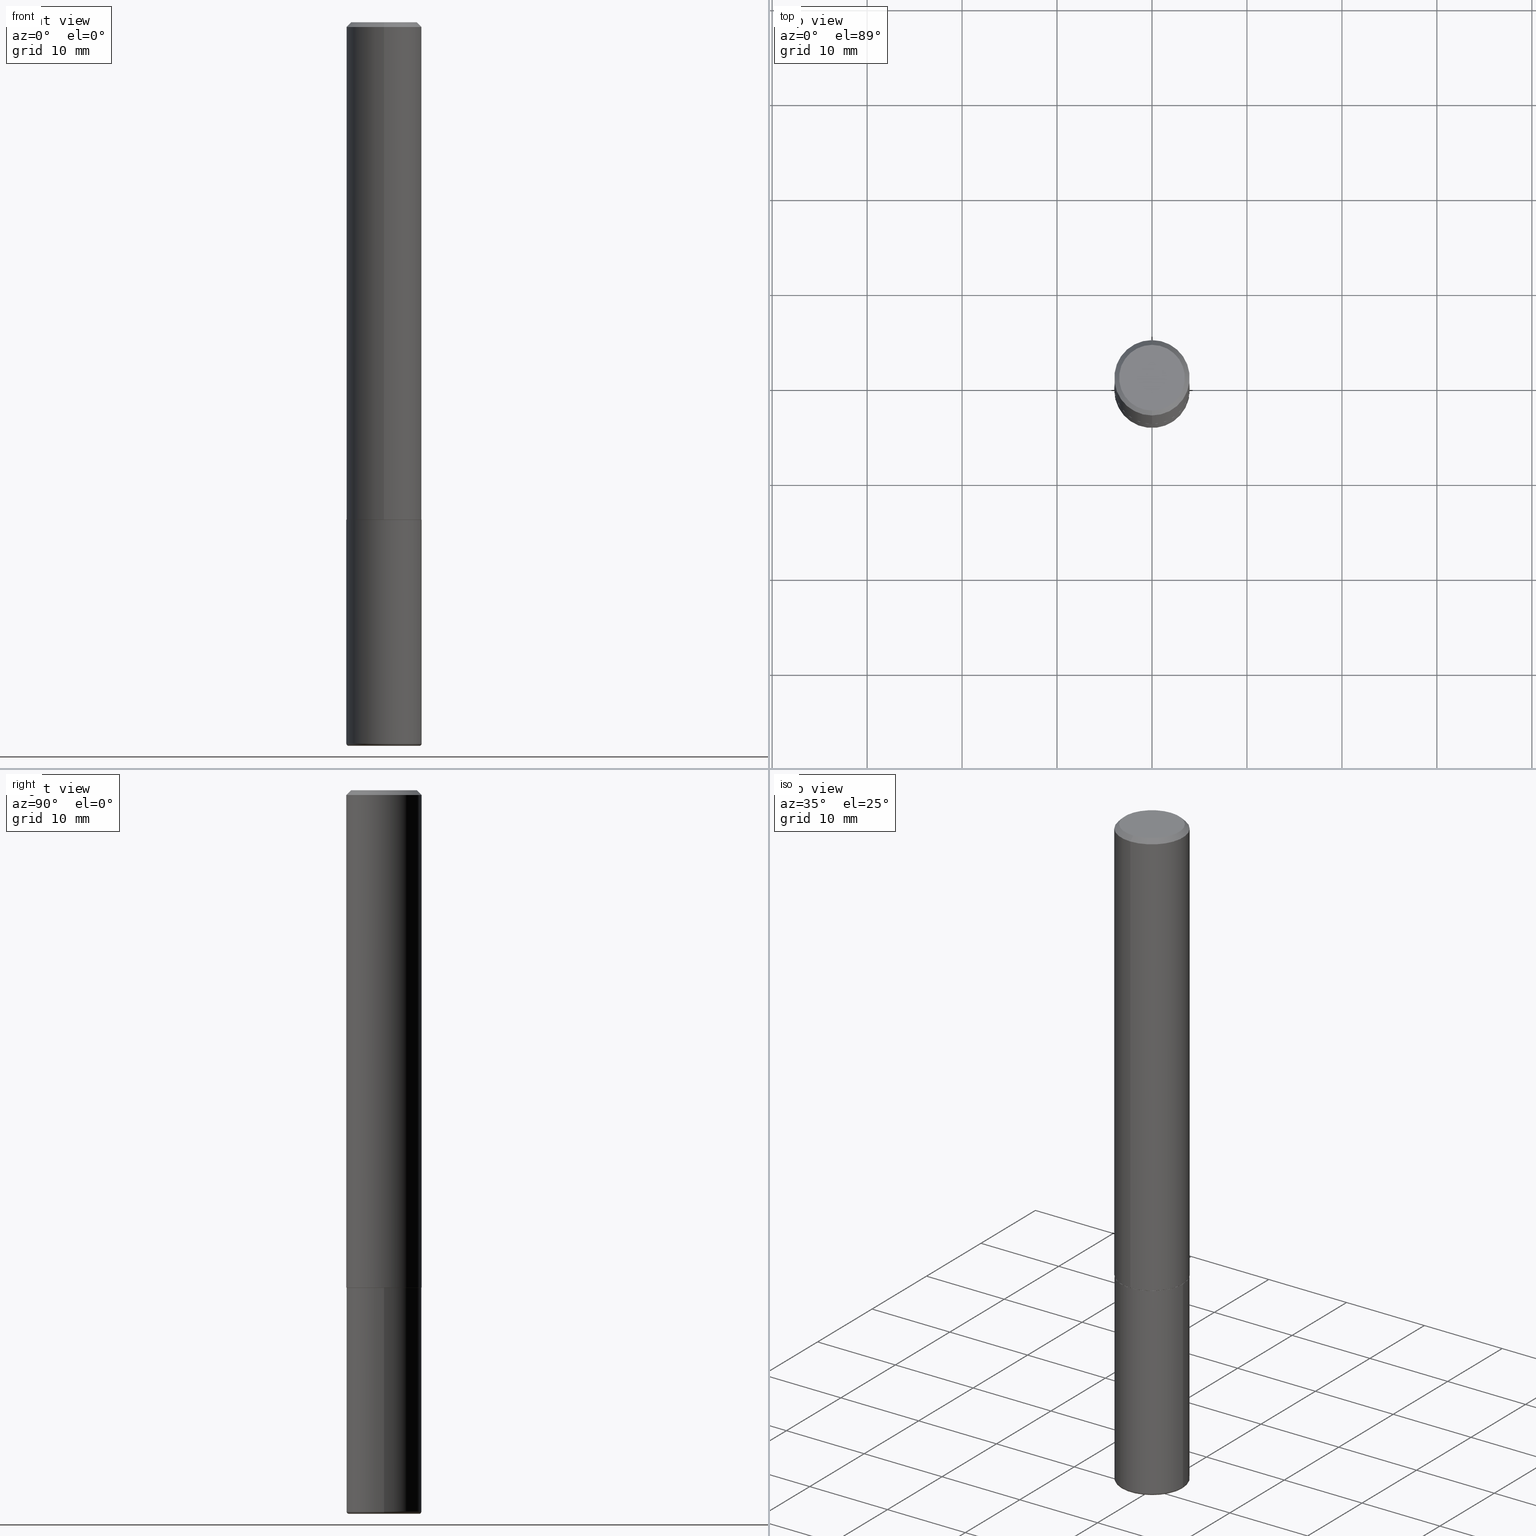
[diagram: canonical four-view strip — front | top / right | iso, engineering-drawing reading convention]
A machine part, canonical four-view strip (front | top / right | iso — engineering-drawing reading convention). The complete STEP part file that produces these views, byte-faithful:
ISO-10303-21;
HEADER;
FILE_DESCRIPTION (( 'STEP AP203' ),
    '1' );
FILE_NAME ('37450.STEP',
    '2024-03-02T01:32:37',
    ( '' ),
    ( '' ),
    'SwSTEP 2.0',
    'SolidWorks 2023',
    '' );
FILE_SCHEMA (( 'CONFIG_CONTROL_DESIGN' ));
ENDSEC;

DATA;
#1 = CYLINDRICAL_SURFACE ( 'NONE', #372, 0.1562500000000001388 ) ;
#2 = ORIENTED_EDGE ( 'NONE', *, *, #417, .F. ) ;
#3 = EDGE_LOOP ( 'NONE', ( #252, #223, #54, #193 ) ) ;
#4 = CYLINDRICAL_SURFACE ( 'NONE', #196, 0.1562500000000001388 ) ;
#5 = AXIS2_PLACEMENT_3D ( 'NONE', #311, #25, #50 ) ;
#6 = CC_DESIGN_APPROVAL ( #279, ( #358 ) ) ;
#7 = EDGE_CURVE ( 'NONE', #198, #344, #370, .T. ) ;
#8 = ORIENTED_EDGE ( 'NONE', *, *, #43, .T. ) ;
#9 = ORIENTED_EDGE ( 'NONE', *, *, #187, .F. ) ;
#10 = VERTEX_POINT ( 'NONE', #129 ) ;
#11 = PRODUCT_DEFINITION_FORMATION_WITH_SPECIFIED_SOURCE ( 'ANY', '', #386, .NOT_KNOWN. ) ;
#12 = COORDINATED_UNIVERSAL_TIME_OFFSET ( 5, 0, .BEHIND. ) ;
#13 = COORDINATED_UNIVERSAL_TIME_OFFSET ( 5, 0, .BEHIND. ) ;
#14 = EDGE_CURVE ( 'NONE', #87, #10, #59, .T. ) ;
#15 = DIRECTION ( 'NONE',  ( -1.000000000000000000, 6.982962677686265922E-15, -4.876176775795935793E-29 ) ) ;
#16 = PLANE ( 'NONE',  #151 ) ;
#17 = CYLINDRICAL_SURFACE ( 'NONE', #157, 0.1562500000000000000 ) ;
#18 = APPROVAL_DATE_TIME ( #105, #279 ) ;
#19 = DIRECTION ( 'NONE',  ( -4.937700262164378437E-15, -0.7071067811865208164, 0.7071067811865739960 ) ) ;
#20 = DIRECTION ( 'NONE',  ( 2.445176063107630933E-29, -3.491900563592034843E-15, -1.000000000000000000 ) ) ;
#21 = DIRECTION ( 'NONE',  ( -2.445176063107630933E-29, 3.491900563592034843E-15, 1.000000000000000000 ) ) ;
#22 = ADVANCED_FACE ( 'NONE', ( #406 ), #65, .T. ) ;
#23 = PLANE ( 'NONE',  #69 ) ;
#24 = ORIENTED_EDGE ( 'NONE', *, *, #303, .F. ) ;
#25 = DIRECTION ( 'NONE',  ( -2.445468806185136597E-29, 3.491481338843145583E-15, 1.000000000000000000 ) ) ;
#26 = LENGTH_MEASURE_WITH_UNIT ( LENGTH_MEASURE( 0.02539999999999999897 ), #353 );
#27 = CARTESIAN_POINT ( 'NONE',  ( 0.1562500000000000278, -1.153061712152948940E-14, -2.990000000000000657 ) ) ;
#28 = DIRECTION ( 'NONE',  ( 5.024295867787889629E-15, 0.7071067811865257013, 0.7071067811865691111 ) ) ;
#29 = EDGE_LOOP ( 'NONE', ( #60, #2 ) ) ;
#30 = DIRECTION ( 'NONE',  ( -6.982962677686265922E-15, -1.000000000000000000, 3.491900563592035238E-15 ) ) ;
#31 = CARTESIAN_POINT ( 'NONE',  ( 5.043175630159490166E-29, -7.202044912408575044E-15, -2.062500000000000444 ) ) ;
#32 = DIRECTION ( 'NONE',  ( -6.982962677686265133E-15, -1.000000000000000000, 3.496765431890256920E-15 ) ) ;
#33 = EDGE_CURVE ( 'NONE', #373, #58, #91, .T. ) ;
#34 = APPLICATION_PROTOCOL_DEFINITION ( 'international standard', 'config_control_design', 1994, #104 ) ;
#35 = AXIS2_PLACEMENT_3D ( 'NONE', #114, #247, #379 ) ;
#36 = CC_DESIGN_SECURITY_CLASSIFICATION ( #397, ( #11 ) ) ;
#37 = DIRECTION ( 'NONE',  ( 2.445176063107630933E-29, -3.491900563592034843E-15, -1.000000000000000000 ) ) ;
#38 = VERTEX_POINT ( 'NONE', #313 ) ;
#39 = EDGE_CURVE ( 'NONE', #38, #198, #278, .T. ) ;
#40 = ORIENTED_EDGE ( 'NONE', *, *, #345, .F. ) ;
#41 = AXIS2_PLACEMENT_3D ( 'NONE', #42, #51, #402 ) ;
#42 = CARTESIAN_POINT ( 'NONE',  ( 7.336406418555409790E-29, -1.047444401652943635E-14, -3.000000000000000444 ) ) ;
#43 = EDGE_CURVE ( 'NONE', #190, #344, #369, .T. ) ;
#44 = DIRECTION ( 'NONE',  ( -6.982962677686265922E-15, -1.000000000000000000, 3.491900563592034843E-15 ) ) ;
#45 = CIRCLE ( 'NONE', #86, 0.1562500000000000000 ) ;
#46 = DIRECTION ( 'NONE',  ( -2.445176063107630653E-29, 3.491900563592034843E-15, 1.000000000000000000 ) ) ;
#47 = SHAPE_DEFINITION_REPRESENTATION ( #416, #201 ) ;
#48 = DIRECTION ( 'NONE',  ( -2.445176063107630933E-29, 3.491900563592034843E-15, 1.000000000000000000 ) ) ;
#49 = FACE_OUTER_BOUND ( 'NONE', #362, .T. ) ;
#50 = DIRECTION ( 'NONE',  ( 1.000000000000000000, -6.982962677686262766E-15, 0.000000000000000000 ) ) ;
#51 = DIRECTION ( 'NONE',  ( -2.445468806185136597E-29, 3.491481338843145583E-15, 1.000000000000000000 ) ) ;
#52 = ADVANCED_FACE ( 'NONE', ( #376 ), #280, .F. ) ;
#53 = DIRECTION ( 'NONE',  ( -6.982962677686265922E-15, -1.000000000000000000, 3.519288880726909138E-15 ) ) ;
#54 = ORIENTED_EDGE ( 'NONE', *, *, #39, .T. ) ;
#55 = LINE ( 'NONE', #238, #189 ) ;
#56 = VECTOR ( 'NONE', #378, 39.37007874015748143 ) ;
#57 = ADVANCED_FACE ( 'NONE', ( #239 ), #17, .T. ) ;
#58 = VERTEX_POINT ( 'NONE', #192 ) ;
#59 = CIRCLE ( 'NONE', #273, 0.1562500000000000000 ) ;
#60 = ORIENTED_EDGE ( 'NONE', *, *, #78, .F. ) ;
#61 = APPROVAL_PERSON_ORGANIZATION ( #180, #326, #143 ) ;
#62 = DIRECTION ( 'NONE',  ( -6.982962677686265922E-15, -1.000000000000000000, 3.491900563592035238E-15 ) ) ;
#63 = FACE_OUTER_BOUND ( 'NONE', #3, .T. ) ;
#64 = ORIENTED_EDGE ( 'NONE', *, *, #71, .F. ) ;
#65 = CONICAL_SURFACE ( 'NONE', #85, 0.1562500000000000000, 0.7853981633974469467 ) ;
#66 = EDGE_LOOP ( 'NONE', ( #40, #161 ) ) ;
#67 = PERSON_AND_ORGANIZATION ( #178, #360 ) ;
#68 = VECTOR ( 'NONE', #395, 39.37007874015748143 ) ;
#69 = AXIS2_PLACEMENT_3D ( 'NONE', #153, #302, #243 ) ;
#70 = APPROVAL_STATUS ( 'not_yet_approved' ) ;
#71 = EDGE_CURVE ( 'NONE', #38, #177, #350, .T. ) ;
#72 = PERSON_AND_ORGANIZATION_ROLE ( 'design_supplier' ) ;
#73 = DIRECTION ( 'NONE',  ( -2.445176063107630933E-29, 3.491900563592034843E-15, 1.000000000000000000 ) ) ;
#74 = DIRECTION ( 'NONE',  ( -6.982962677686266711E-15, -1.000000000000000000, 3.491481338843145583E-15 ) ) ;
#75 = FACE_OUTER_BOUND ( 'NONE', #294, .T. ) ;
#76 = LOCAL_TIME ( 20, 32, 37.00000000000000000, #12 ) ;
#77 = DATE_AND_TIME ( #208, #234 ) ;
#78 = EDGE_CURVE ( 'NONE', #418, #186, #168, .T. ) ;
#79 = CARTESIAN_POINT ( 'NONE',  ( 4.890352126215269679E-31, -6.983801127184080238E-17, -0.02000000000000003511 ) ) ;
#80 = DIRECTION ( 'NONE',  ( -6.982962677686265922E-15, -1.000000000000000000, 3.491900563592034843E-15 ) ) ;
#81 = DATE_TIME_ROLE ( 'classification_date' ) ;
#82 = FACE_OUTER_BOUND ( 'NONE', #89, .T. ) ;
#83 = DIRECTION ( 'NONE',  ( 1.000000000000000000, -6.982962677686269077E-15, 0.000000000000000000 ) ) ;
#84 = EDGE_CURVE ( 'NONE', #177, #344, #285, .T. ) ;
#85 = AXIS2_PLACEMENT_3D ( 'NONE', #333, #20, #346 ) ;
#86 = AXIS2_PLACEMENT_3D ( 'NONE', #79, #21, #236 ) ;
#87 = VERTEX_POINT ( 'NONE', #155 ) ;
#88 = DIRECTION ( 'NONE',  ( 6.982962677686265133E-15, 1.000000000000000000, -3.496765431890256920E-15 ) ) ;
#89 = EDGE_LOOP ( 'NONE', ( #265, #212, #8, #115 ) ) ;
#90 = CARTESIAN_POINT ( 'NONE',  ( 0.000000000000000000, 0.000000000000000000, 0.000000000000000000 ) ) ;
#91 = CIRCLE ( 'NONE', #5, 0.1562500000000000000 ) ;
#92 = CONICAL_SURFACE ( 'NONE', #231, 0.1552499999999999991, 0.7853981633974141952 ) ;
#93 = ADVANCED_FACE ( 'NONE', ( #49 ), #307, .T. ) ;
#94 = ORIENTED_EDGE ( 'NONE', *, *, #417, .T. ) ;
#95 = DIRECTION ( 'NONE',  ( 1.000000000000000000, -6.982962677686269077E-15, 0.000000000000000000 ) ) ;
#96 = ORIENTED_EDGE ( 'NONE', *, *, #102, .F. ) ;
#97 = DIRECTION ( 'NONE',  ( -6.982962677686265922E-15, -1.000000000000000000, 3.519288880726909138E-15 ) ) ;
#98 = FACE_OUTER_BOUND ( 'NONE', #257, .T. ) ;
#99 = ORIENTED_EDGE ( 'NONE', *, *, #364, .F. ) ;
#100 = ADVANCED_FACE ( 'NONE', ( #270 ), #405, .F. ) ;
#101 = APPROVAL_PERSON_ORGANIZATION ( #67, #279, #112 ) ;
#102 = EDGE_CURVE ( 'NONE', #58, #373, #184, .T. ) ;
#103 = AXIS2_PLACEMENT_3D ( 'NONE', #412, #148, #116 ) ;
#104 = APPLICATION_CONTEXT ( 'configuration controlled 3d designs of mechanical parts and assemblies' ) ;
#105 = DATE_AND_TIME ( #137, #255 ) ;
#106 = CARTESIAN_POINT ( 'NONE',  ( 0.1462500000000000189, -1.149570230814105460E-14, -3.000000000000000444 ) ) ;
#107 = DIRECTION ( 'NONE',  ( -2.445468806185136877E-29, 3.491481338843145188E-15, 1.000000000000000000 ) ) ;
#108 = ADVANCED_FACE ( 'NONE', ( #82 ), #138, .T. ) ;
#109 = ORIENTED_EDGE ( 'NONE', *, *, #84, .T. ) ;
#110 = AXIS2_PLACEMENT_3D ( 'NONE', #342, #46, #80 ) ;
#111 = CARTESIAN_POINT ( 'NONE',  ( 1.091087918388479568E-15, 0.1562499999999999445, -0.02000000000000057981 ) ) ;
#112 = APPROVAL_ROLE ( '' ) ;
#113 = CARTESIAN_POINT ( 'NONE',  ( -1.071952812151801215E-15, -0.1562500000000000833, -0.01999999999999948694 ) ) ;
#114 = CARTESIAN_POINT ( 'NONE',  ( 7.311951730493559366E-29, -1.043952920314100786E-14, -2.990000000000000657 ) ) ;
#115 = ORIENTED_EDGE ( 'NONE', *, *, #336, .T. ) ;
#116 = DIRECTION ( 'NONE',  ( 1.000000000000000000, -6.982962677686270655E-15, 0.000000000000000000 ) ) ;
#117 =( NAMED_UNIT ( * ) SI_UNIT ( $, .STERADIAN. ) SOLID_ANGLE_UNIT ( ) );
#118 = ADVANCED_FACE ( 'NONE', ( #125 ), #1, .T. ) ;
#119 = VECTOR ( 'NONE', #383, 39.37007874015748143 ) ;
#120 = CIRCLE ( 'NONE', #176, 0.1362500000000001210 ) ;
#121 = ORIENTED_EDGE ( 'NONE', *, *, #303, .T. ) ;
#122 = EDGE_LOOP ( 'NONE', ( #99, #314, #194, #287 ) ) ;
#123 = EDGE_CURVE ( 'NONE', #177, #38, #330, .T. ) ;
#124 = ORIENTED_EDGE ( 'NONE', *, *, #123, .F. ) ;
#125 = FACE_OUTER_BOUND ( 'NONE', #160, .T. ) ;
#126 = ORIENTED_EDGE ( 'NONE', *, *, #71, .T. ) ;
#127 = AXIS2_PLACEMENT_3D ( 'NONE', #207, #382, #219 ) ;
#128 = DIRECTION ( 'NONE',  ( 0.000000000000000000, 0.000000000000000000, 1.000000000000000000 ) ) ;
#129 = CARTESIAN_POINT ( 'NONE',  ( 0.1562500000000000000, -8.292268179752468540E-15, -2.062500000000000000 ) ) ;
#130 = TOROIDAL_SURFACE ( 'NONE', #325, 0.1462500000000000189, 0.01000000000000008174 ) ;
#131 = DIRECTION ( 'NONE',  ( -2.445176063107630933E-29, 3.491900563592034843E-15, 1.000000000000000000 ) ) ;
#132 = CC_DESIGN_DATE_AND_TIME_ASSIGNMENT ( #77, #343, ( #358 ) ) ;
#133 = ORIENTED_EDGE ( 'NONE', *, *, #345, .T. ) ;
#134 = APPROVAL ( #70, 'UNSPECIFIED' ) ;
#135 = CARTESIAN_POINT ( 'NONE',  ( 0.000000000000000000, 0.000000000000000000, 0.000000000000000000 ) ) ;
#136 = APPROVAL_DATE_TIME ( #211, #134 ) ;
#137 = CALENDAR_DATE ( 2024, 1, 3 ) ;
#138 = CONICAL_SURFACE ( 'NONE', #384, 0.1562500000000000000, 0.7853981633974469467 ) ;
#139 = FACE_OUTER_BOUND ( 'NONE', #241, .T. ) ;
#140 = VECTOR ( 'NONE', #28, 39.37007874015748854 ) ;
#141 = DIRECTION ( 'NONE',  ( 2.438088387897960049E-29, -3.491481338843145188E-15, -1.000000000000000000 ) ) ;
#142 = CARTESIAN_POINT ( 'NONE',  ( 0.000000000000000000, 0.000000000000000000, 0.000000000000000000 ) ) ;
#143 = APPROVAL_ROLE ( '' ) ;
#144 = CARTESIAN_POINT ( 'NONE',  ( 1.106670310946407312E-15, 0.1552499999999928104, -2.062500000000000888 ) ) ;
#145 = PRODUCT_RELATED_PRODUCT_CATEGORY ( 'detail', '', ( #386 ) ) ;
#146 = DATE_AND_TIME ( #272, #337 ) ;
#147 = ORIENTED_EDGE ( 'NONE', *, *, #39, .F. ) ;
#148 = DIRECTION ( 'NONE',  ( -2.445468806185136597E-29, 3.491481338843145583E-15, 1.000000000000000000 ) ) ;
#149 = VECTOR ( 'NONE', #339, 39.37007874015748143 ) ;
#150 = DIRECTION ( 'NONE',  ( 2.445176063107630653E-29, -3.491900563592034843E-15, -1.000000000000000000 ) ) ;
#151 = AXIS2_PLACEMENT_3D ( 'NONE', #179, #141, #15 ) ;
#152 = EDGE_LOOP ( 'NONE', ( #9, #167, #292, #328 ) ) ;
#153 = CARTESIAN_POINT ( 'NONE',  ( 5.043779412756844791E-29, -7.201180261363988578E-15, -2.062500000000000000 ) ) ;
#154 = ADVANCED_FACE ( 'NONE', ( #98 ), #293, .T. ) ;
#155 = CARTESIAN_POINT ( 'NONE',  ( -0.1562500000000000000, -7.710131707627340889E-15, -2.062500000000000000 ) ) ;
#156 = MANIFOLD_SOLID_BREP ( 'Body-Move/Copy2[1]', #225 ) ;
#157 = AXIS2_PLACEMENT_3D ( 'NONE', #142, #267, #355 ) ;
#158 = LOCAL_TIME ( 20, 32, 37.00000000000000000, #203 ) ;
#159 = AXIS2_PLACEMENT_3D ( 'NONE', #305, #380, #83 ) ;
#160 = EDGE_LOOP ( 'NONE', ( #126, #109, #348, #147 ) ) ;
#161 = ORIENTED_EDGE ( 'NONE', *, *, #170, .F. ) ;
#162 = CARTESIAN_POINT ( 'NONE',  ( -0.1462500000000000189, -9.382290721998072185E-15, -3.000000000000000444 ) ) ;
#163 = DIRECTION ( 'NONE',  ( -6.982962677686265922E-15, -1.000000000000000000, 3.496765431890250609E-15 ) ) ;
#164 = ORIENTED_EDGE ( 'NONE', *, *, #170, .T. ) ;
#165 = CARTESIAN_POINT ( 'NONE',  ( 5.040730454096381281E-29, -7.198553011844980434E-15, -2.061500000000000110 ) ) ;
#166 = ORIENTED_EDGE ( 'NONE', *, *, #187, .T. ) ;
#167 = ORIENTED_EDGE ( 'NONE', *, *, #102, .T. ) ;
#168 = CIRCLE ( 'NONE', #407, 0.1552499999999999991 ) ;
#169 = VECTOR ( 'NONE', #107, 39.37007874015748143 ) ;
#170 = EDGE_CURVE ( 'NONE', #387, #312, #351, .T. ) ;
#171 = PERSON_AND_ORGANIZATION ( #178, #360 ) ;
#172 = CARTESIAN_POINT ( 'NONE',  ( 1.021258291611617059E-15, 0.1362500000000001210, -5.653530947094876156E-16 ) ) ;
#173 = SECURITY_CLASSIFICATION_LEVEL ( 'unclassified' ) ;
#174 = CC_DESIGN_PERSON_AND_ORGANIZATION_ASSIGNMENT ( #235, #72, ( #11 ) ) ;
#175 = DIRECTION ( 'NONE',  ( 7.105427357601001859E-15, 1.000000000000000000, -3.491481338843145583E-15 ) ) ;
#176 = AXIS2_PLACEMENT_3D ( 'NONE', #213, #367, #44 ) ;
#177 = VERTEX_POINT ( 'NONE', #246 ) ;
#178 = PERSON ( 'UNSPECIFIED', 'UNSPECIFIED', 'UNSPECIFIED', ('UNSPECIFIED'), ('UNSPECIFIED'), ('UNSPECIFIED') ) ;
#179 = CARTESIAN_POINT ( 'NONE',  ( 7.336406418555409790E-29, -1.047444401652943635E-14, -3.000000000000000444 ) ) ;
#180 = PERSON_AND_ORGANIZATION ( #178, #360 ) ;
#181 = CARTESIAN_POINT ( 'NONE',  ( -1.071952812151801215E-15, -0.1562500000000000833, -0.01999999999999948694 ) ) ;
#182 = DESIGN_CONTEXT ( 'detailed design', #104, 'design' ) ;
#183 = LINE ( 'NONE', #310, #288 ) ;
#184 = CIRCLE ( 'NONE', #35, 0.1562500000000000000 ) ;
#185 = APPLICATION_PROTOCOL_DEFINITION ( 'international standard', 'config_control_design', 1994, #309 ) ;
#186 = VERTEX_POINT ( 'NONE', #144 ) ;
#187 = EDGE_CURVE ( 'NONE', #58, #87, #55, .T. ) ;
#188 = AXIS2_PLACEMENT_3D ( 'NONE', #254, #322, #32 ) ;
#189 = VECTOR ( 'NONE', #215, 39.37007874015748143 ) ;
#190 = VERTEX_POINT ( 'NONE', #172 ) ;
#191 = CARTESIAN_POINT ( 'NONE',  ( 5.040730454096381281E-29, -7.198553011844980434E-15, -2.061500000000000110 ) ) ;
#192 = CARTESIAN_POINT ( 'NONE',  ( -0.1562500000000000278, -9.329306178515851319E-15, -2.990000000000000657 ) ) ;
#193 = ORIENTED_EDGE ( 'NONE', *, *, #336, .F. ) ;
#194 = ORIENTED_EDGE ( 'NONE', *, *, #7, .T. ) ;
#195 = EDGE_CURVE ( 'NONE', #373, #10, #249, .T. ) ;
#196 = AXIS2_PLACEMENT_3D ( 'NONE', #90, #131, #30 ) ;
#197 = ORIENTED_EDGE ( 'NONE', *, *, #245, .F. ) ;
#198 = VERTEX_POINT ( 'NONE', #113 ) ;
#199 = EDGE_CURVE ( 'NONE', #190, #359, #120, .T. ) ;
#200 = CIRCLE ( 'NONE', #220, 0.01000000000000006439 ) ;
#201 = ADVANCED_BREP_SHAPE_REPRESENTATION ( '37450', ( #156, #291, #295 ), #282 ) ;
#202 = CC_DESIGN_PERSON_AND_ORGANIZATION_ASSIGNMENT ( #401, #261, ( #358 ) ) ;
#203 = COORDINATED_UNIVERSAL_TIME_OFFSET ( 5, 0, .BEHIND. ) ;
#204 = DIRECTION ( 'NONE',  ( -6.982962677686265922E-15, -1.000000000000000000, 3.519288880726909138E-15 ) ) ;
#205 = ORIENTED_EDGE ( 'NONE', *, *, #245, .T. ) ;
#206 = LINE ( 'NONE', #266, #140 ) ;
#207 = CARTESIAN_POINT ( 'NONE',  ( 7.311951730493558245E-29, -1.043952920314100628E-14, -2.990000000000000213 ) ) ;
#208 = CALENDAR_DATE ( 2024, 1, 3 ) ;
#209 = AXIS2_PLACEMENT_3D ( 'NONE', #135, #233, #363 ) ;
#210 = CARTESIAN_POINT ( 'NONE',  ( 5.043175630159490166E-29, -7.202044912408575044E-15, -2.062500000000000444 ) ) ;
#211 = DATE_AND_TIME ( #371, #76 ) ;
#212 = ORIENTED_EDGE ( 'NONE', *, *, #199, .F. ) ;
#213 = CARTESIAN_POINT ( 'NONE',  ( 2.190428889620163364E-45, -3.128101894001013777E-31, -8.958164292007245599E-17 ) ) ;
#214 = PERSON_AND_ORGANIZATION ( #178, #360 ) ;
#215 = DIRECTION ( 'NONE',  ( -2.445468806185136877E-29, 3.491481338843145188E-15, 1.000000000000000000 ) ) ;
#216 = CC_DESIGN_PERSON_AND_ORGANIZATION_ASSIGNMENT ( #361, #396, ( #386 ) ) ;
#217 = DIRECTION ( 'NONE',  ( -1.000000000000000000, 7.105427357601074434E-15, 0.000000000000000000 ) ) ;
#218 = AXIS2_PLACEMENT_3D ( 'NONE', #165, #222, #321 ) ;
#219 = DIRECTION ( 'NONE',  ( 1.000000000000000000, -6.982962677686272233E-15, 4.883557194083114583E-29 ) ) ;
#220 = AXIS2_PLACEMENT_3D ( 'NONE', #341, #175, #217 ) ;
#221 = ORIENTED_EDGE ( 'NONE', *, *, #228, .F. ) ;
#222 = DIRECTION ( 'NONE',  ( -2.445176063107630933E-29, 3.491900563592034843E-15, 1.000000000000000000 ) ) ;
#223 = ORIENTED_EDGE ( 'NONE', *, *, #123, .T. ) ;
#224 = CARTESIAN_POINT ( 'NONE',  ( 0.000000000000000000, 0.000000000000000000, 0.000000000000000000 ) ) ;
#225 = CLOSED_SHELL ( 'NONE', ( #154, #93, #290, #57, #271, #262 ) ) ;
#226 = CIRCLE ( 'NONE', #415, 0.01000000000000006439 ) ;
#227 = EDGE_LOOP ( 'NONE', ( #276, #318 ) ) ;
#228 = EDGE_CURVE ( 'NONE', #10, #87, #393, .T. ) ;
#229 = UNCERTAINTY_MEASURE_WITH_UNIT (LENGTH_MEASURE( 1.000000000000000082E-05 ), #411, 'distance_accuracy_value', 'NONE');
#230 = ORIENTED_EDGE ( 'NONE', *, *, #195, .F. ) ;
#231 = AXIS2_PLACEMENT_3D ( 'NONE', #394, #73, #53 ) ;
#232 = EDGE_CURVE ( 'NONE', #387, #58, #200, .T. ) ;
#233 = DIRECTION ( 'NONE',  ( -2.445468806185136597E-29, 3.491481338843145583E-15, 1.000000000000000000 ) ) ;
#234 = LOCAL_TIME ( 20, 32, 37.00000000000000000, #301 ) ;
#235 = PERSON_AND_ORGANIZATION ( #178, #360 ) ;
#236 = DIRECTION ( 'NONE',  ( -6.982962677686265133E-15, -1.000000000000000000, 3.496765431890256920E-15 ) ) ;
#237 = ORIENTED_EDGE ( 'NONE', *, *, #78, .T. ) ;
#238 = CARTESIAN_POINT ( 'NONE',  ( -0.1562500000000000000, 1.110223024625156540E-15, -7.685836078523291160E-30 ) ) ;
#239 = FACE_OUTER_BOUND ( 'NONE', #152, .T. ) ;
#240 = DATE_AND_TIME ( #244, #158 ) ;
#241 = EDGE_LOOP ( 'NONE', ( #340, #164, #121, #96 ) ) ;
#242 = CONICAL_SURFACE ( 'NONE', #409, 0.1552499999999999991, 0.7853981633974141952 ) ;
#243 = DIRECTION ( 'NONE',  ( -1.000000000000000000, 6.982962677686265922E-15, -4.876176775795935793E-29 ) ) ;
#244 = CALENDAR_DATE ( 2024, 1, 3 ) ;
#245 = EDGE_CURVE ( 'NONE', #418, #38, #183, .T. ) ;
#246 = CARTESIAN_POINT ( 'NONE',  ( 1.110223024625183362E-15, 0.1562499999999930611, -2.061500000000000554 ) ) ;
#247 = DIRECTION ( 'NONE',  ( -2.445468806185136597E-29, 3.491481338843145583E-15, 1.000000000000000000 ) ) ;
#248 =( NAMED_UNIT ( * ) PLANE_ANGLE_UNIT ( ) SI_UNIT ( $, .RADIAN. ) );
#249 = LINE ( 'NONE', #300, #169 ) ;
#250 = CC_DESIGN_PERSON_AND_ORGANIZATION_ASSIGNMENT ( #171, #268, ( #11 ) ) ;
#251 = CIRCLE ( 'NONE', #103, 0.1462500000000000189 ) ;
#252 = ORIENTED_EDGE ( 'NONE', *, *, #84, .F. ) ;
#253 = ORIENTED_EDGE ( 'NONE', *, *, #228, .T. ) ;
#254 = CARTESIAN_POINT ( 'NONE',  ( 4.890352126215269679E-31, -6.983801127184080238E-17, -0.02000000000000003511 ) ) ;
#255 = LOCAL_TIME ( 20, 32, 37.00000000000000000, #13 ) ;
#256 = CARTESIAN_POINT ( 'NONE',  ( 5.043779412756844791E-29, -7.201180261363988578E-15, -2.062500000000000000 ) ) ;
#257 = EDGE_LOOP ( 'NONE', ( #299, #166, #221, #230 ) ) ;
#258 = EDGE_CURVE ( 'NONE', #359, #198, #338, .T. ) ;
#259 = CARTESIAN_POINT ( 'NONE',  ( 1.110223024625157329E-15, 0.1562500000000001388, -5.456094630612559989E-16 ) ) ;
#260 = CC_DESIGN_APPROVAL ( #326, ( #11 ) ) ;
#261 = PERSON_AND_ORGANIZATION_ROLE ( 'creator' ) ;
#262 = ADVANCED_FACE ( 'NONE', ( #298 ), #16, .T. ) ;
#263 = DIRECTION ( 'NONE',  ( 1.000000000000000000, -6.982962677686272233E-15, 4.883557194083114583E-29 ) ) ;
#264 = PERSON_AND_ORGANIZATION_ROLE ( 'classification_officer' ) ;
#265 = ORIENTED_EDGE ( 'NONE', *, *, #258, .F. ) ;
#266 = CARTESIAN_POINT ( 'NONE',  ( 1.103117597267605822E-15, 0.1552499999999928104, -2.062500000000000888 ) ) ;
#267 = DIRECTION ( 'NONE',  ( -2.445468806185136597E-29, 3.491481338843145583E-15, 1.000000000000000000 ) ) ;
#268 = PERSON_AND_ORGANIZATION_ROLE ( 'creator' ) ;
#269 = CARTESIAN_POINT ( 'NONE',  ( 7.311951730493558245E-29, -1.043952920314100628E-14, -2.990000000000000213 ) ) ;
#270 = FACE_OUTER_BOUND ( 'NONE', #227, .T. ) ;
#271 = ADVANCED_FACE ( 'NONE', ( #139 ), #130, .T. ) ;
#272 = CALENDAR_DATE ( 2024, 1, 3 ) ;
#273 = AXIS2_PLACEMENT_3D ( 'NONE', #256, #391, #95 ) ;
#274 = CIRCLE ( 'NONE', #385, 0.1362500000000001210 ) ;
#275 = DIRECTION ( 'NONE',  ( 6.982962677686265922E-15, 1.000000000000000000, -3.491900563592034843E-15 ) ) ;
#276 = ORIENTED_EDGE ( 'NONE', *, *, #199, .T. ) ;
#277 = CARTESIAN_POINT ( 'NONE',  ( 1.091087918388479568E-15, 0.1562499999999999445, -0.02000000000000057981 ) ) ;
#278 = LINE ( 'NONE', #413, #149 ) ;
#279 = APPROVAL ( #327, 'UNSPECIFIED' ) ;
#280 = PLANE ( 'NONE',  #110 ) ;
#281 = CLOSED_SHELL ( 'NONE', ( #286, #118, #22, #108, #381, #400, #52, #100 ) ) ;
#282 =( GEOMETRIC_REPRESENTATION_CONTEXT ( 3 ) GLOBAL_UNCERTAINTY_ASSIGNED_CONTEXT ( ( #229 ) ) GLOBAL_UNIT_ASSIGNED_CONTEXT ( ( #411, #248, #117 ) ) REPRESENTATION_CONTEXT ( 'NONE', 'WORKASPACE' ) );
#283 = FACE_OUTER_BOUND ( 'NONE', #347, .T. ) ;
#284 = EDGE_LOOP ( 'NONE', ( #253, #357 ) ) ;
#285 = LINE ( 'NONE', #259, #68 ) ;
#286 = ADVANCED_FACE ( 'NONE', ( #75 ), #242, .T. ) ;
#287 = ORIENTED_EDGE ( 'NONE', *, *, #43, .F. ) ;
#288 = VECTOR ( 'NONE', #19, 39.37007874015748854 ) ;
#289 = CC_DESIGN_PERSON_AND_ORGANIZATION_ASSIGNMENT ( #408, #264, ( #397 ) ) ;
#290 = ADVANCED_FACE ( 'NONE', ( #404 ), #23, .F. ) ;
#291 = MANIFOLD_SOLID_BREP ( 'Body-Move/Copy2[2]', #281 ) ;
#292 = ORIENTED_EDGE ( 'NONE', *, *, #195, .T. ) ;
#293 = CYLINDRICAL_SURFACE ( 'NONE', #209, 0.1562500000000000000 ) ;
#294 = EDGE_LOOP ( 'NONE', ( #237, #414, #64, #197 ) ) ;
#295 = AXIS2_PLACEMENT_3D ( 'NONE', #329, #128, #324 ) ;
#296 = APPROVAL_ROLE ( '' ) ;
#297 = DIRECTION ( 'NONE',  ( -2.445176063107630933E-29, 3.491900563592034843E-15, 1.000000000000000000 ) ) ;
#298 = FACE_OUTER_BOUND ( 'NONE', #66, .T. ) ;
#299 = ORIENTED_EDGE ( 'NONE', *, *, #33, .T. ) ;
#300 = CARTESIAN_POINT ( 'NONE',  ( 0.1562500000000000000, -1.091087918388479174E-15, 7.619026212181150377E-30 ) ) ;
#301 = COORDINATED_UNIVERSAL_TIME_OFFSET ( 5, 0, .BEHIND. ) ;
#302 = DIRECTION ( 'NONE',  ( 2.438088387897960049E-29, -3.491481338843145188E-15, -1.000000000000000000 ) ) ;
#303 = EDGE_CURVE ( 'NONE', #312, #373, #226, .T. ) ;
#304 = ORIENTED_EDGE ( 'NONE', *, *, #33, .F. ) ;
#305 = CARTESIAN_POINT ( 'NONE',  ( 5.043779412756844791E-29, -7.201180261363988578E-15, -2.062500000000000000 ) ) ;
#306 = CARTESIAN_POINT ( 'NONE',  ( 5.043175630159490166E-29, -7.202044912408575044E-15, -2.062500000000000444 ) ) ;
#307 = TOROIDAL_SURFACE ( 'NONE', #127, 0.1462500000000000189, 0.01000000000000008174 ) ;
#308 = AXIS2_PLACEMENT_3D ( 'NONE', #191, #319, #163 ) ;
#309 = APPLICATION_CONTEXT ( 'configuration controlled 3d designs of mechanical parts and assemblies' ) ;
#310 = CARTESIAN_POINT ( 'NONE',  ( -1.084104955710742475E-15, -0.1552500000000072156, -2.062500000000000000 ) ) ;
#311 = CARTESIAN_POINT ( 'NONE',  ( 7.311951730493559366E-29, -1.043952920314100786E-14, -2.990000000000000657 ) ) ;
#312 = VERTEX_POINT ( 'NONE', #106 ) ;
#313 = CARTESIAN_POINT ( 'NONE',  ( -1.091087918388430659E-15, -0.1562500000000074940, -2.061499999999999666 ) ) ;
#314 = ORIENTED_EDGE ( 'NONE', *, *, #258, .T. ) ;
#315 = CARTESIAN_POINT ( 'NONE',  ( 2.190428889620163364E-45, -3.128101894001013777E-31, -8.958164292007245599E-17 ) ) ;
#316 = ORIENTED_EDGE ( 'NONE', *, *, #349, .F. ) ;
#317 = CC_DESIGN_APPROVAL ( #134, ( #397 ) ) ;
#318 = ORIENTED_EDGE ( 'NONE', *, *, #364, .T. ) ;
#319 = DIRECTION ( 'NONE',  ( -2.445176063107630933E-29, 3.491900563592034843E-15, 1.000000000000000000 ) ) ;
#320 = DIMENSIONAL_EXPONENTS ( 1.000000000000000000, 0.000000000000000000, 0.000000000000000000, 0.000000000000000000, 0.000000000000000000, 0.000000000000000000, 0.000000000000000000 ) ;
#321 = DIRECTION ( 'NONE',  ( -6.982962677686265922E-15, -1.000000000000000000, 3.496765431890250609E-15 ) ) ;
#322 = DIRECTION ( 'NONE',  ( -2.445176063107630933E-29, 3.491900563592034843E-15, 1.000000000000000000 ) ) ;
#323 = CARTESIAN_POINT ( 'NONE',  ( 4.890352126215269679E-31, -6.983801127184080238E-17, -0.02000000000000003511 ) ) ;
#324 = DIRECTION ( 'NONE',  ( 1.000000000000000000, 0.000000000000000000, 0.000000000000000000 ) ) ;
#325 = AXIS2_PLACEMENT_3D ( 'NONE', #269, #368, #263 ) ;
#326 = APPROVAL ( #377, 'UNSPECIFIED' ) ;
#327 = APPROVAL_STATUS ( 'not_yet_approved' ) ;
#328 = ORIENTED_EDGE ( 'NONE', *, *, #14, .F. ) ;
#329 = CARTESIAN_POINT ( 'NONE',  ( 0.000000000000000000, 0.000000000000000000, 0.000000000000000000 ) ) ;
#330 = CIRCLE ( 'NONE', #308, 0.1562500000000002776 ) ;
#331 = CC_DESIGN_DATE_AND_TIME_ASSIGNMENT ( #240, #81, ( #397 ) ) ;
#332 = CARTESIAN_POINT ( 'NONE',  ( -1.084104955710742475E-15, -0.1552500000000072156, -2.062500000000000000 ) ) ;
#333 = CARTESIAN_POINT ( 'NONE',  ( 4.890352126215269679E-31, -6.983801127184080238E-17, -0.02000000000000003511 ) ) ;
#334 = COORDINATED_UNIVERSAL_TIME_OFFSET ( 5, 0, .BEHIND. ) ;
#335 = APPROVAL_PERSON_ORGANIZATION ( #214, #134, #296 ) ;
#336 = EDGE_CURVE ( 'NONE', #344, #198, #45, .T. ) ;
#337 = LOCAL_TIME ( 20, 32, 37.00000000000000000, #334 ) ;
#338 = LINE ( 'NONE', #181, #56 ) ;
#339 = DIRECTION ( 'NONE',  ( -2.445176063107631214E-29, 3.491900563592034843E-15, 1.000000000000000000 ) ) ;
#340 = ORIENTED_EDGE ( 'NONE', *, *, #232, .F. ) ;
#341 = CARTESIAN_POINT ( 'NONE',  ( -0.1462500000000000189, -9.400360452091859823E-15, -2.990000000000000213 ) ) ;
#342 = CARTESIAN_POINT ( 'NONE',  ( 5.043175630159489045E-29, -7.202044912408573467E-15, -2.062500000000000000 ) ) ;
#343 = DATE_TIME_ROLE ( 'creation_date' ) ;
#344 = VERTEX_POINT ( 'NONE', #277 ) ;
#345 = EDGE_CURVE ( 'NONE', #312, #387, #251, .T. ) ;
#346 = DIRECTION ( 'NONE',  ( 6.982962677686265133E-15, 1.000000000000000000, -3.496765431890256920E-15 ) ) ;
#347 = EDGE_LOOP ( 'NONE', ( #316, #94, #205, #124 ) ) ;
#348 = ORIENTED_EDGE ( 'NONE', *, *, #7, .F. ) ;
#349 = EDGE_CURVE ( 'NONE', #186, #177, #206, .T. ) ;
#350 = CIRCLE ( 'NONE', #218, 0.1562500000000002776 ) ;
#351 = CIRCLE ( 'NONE', #41, 0.1462500000000000189 ) ;
#352 = DIRECTION ( 'NONE',  ( -2.445176063107630933E-29, 3.491900563592034843E-15, 1.000000000000000000 ) ) ;
#353 =( LENGTH_UNIT ( ) NAMED_UNIT ( * ) SI_UNIT ( $, .METRE. ) );
#354 = DIRECTION ( 'NONE',  ( -6.982962677686265922E-15, -1.000000000000000000, 3.491900563592034843E-15 ) ) ;
#355 = DIRECTION ( 'NONE',  ( 1.000000000000000000, -6.982962677686266711E-15, 4.876176775795936353E-29 ) ) ;
#356 = MECHANICAL_CONTEXT ( 'NONE', #309, 'mechanical' ) ;
#357 = ORIENTED_EDGE ( 'NONE', *, *, #14, .T. ) ;
#358 = PRODUCT_DEFINITION ( 'UNKNOWN', '', #11, #182 ) ;
#359 = VERTEX_POINT ( 'NONE', #389 ) ;
#360 = ORGANIZATION ( 'UNSPECIFIED', 'UNSPECIFIED', '' ) ;
#361 = PERSON_AND_ORGANIZATION ( #178, #360 ) ;
#362 = EDGE_LOOP ( 'NONE', ( #133, #403, #304, #24 ) ) ;
#363 = DIRECTION ( 'NONE',  ( 1.000000000000000000, -6.982962677686266711E-15, 4.876176775795936353E-29 ) ) ;
#364 = EDGE_CURVE ( 'NONE', #359, #190, #274, .T. ) ;
#365 = AXIS2_PLACEMENT_3D ( 'NONE', #375, #150, #275 ) ;
#366 = CIRCLE ( 'NONE', #390, 0.1552499999999999991 ) ;
#367 = DIRECTION ( 'NONE',  ( -2.445176063107630933E-29, 3.491900563592034843E-15, 1.000000000000000000 ) ) ;
#368 = DIRECTION ( 'NONE',  ( -2.445468806185136597E-29, 3.491481338843145583E-15, 1.000000000000000000 ) ) ;
#369 = LINE ( 'NONE', #111, #119 ) ;
#370 = CIRCLE ( 'NONE', #188, 0.1562500000000000000 ) ;
#371 = CALENDAR_DATE ( 2024, 1, 3 ) ;
#372 = AXIS2_PLACEMENT_3D ( 'NONE', #224, #352, #62 ) ;
#373 = VERTEX_POINT ( 'NONE', #27 ) ;
#374 = DIRECTION ( 'NONE',  ( 1.000000000000000000, -6.982962677686287221E-15, 0.000000000000000000 ) ) ;
#375 = CARTESIAN_POINT ( 'NONE',  ( 9.514286648347545493E-16, 0.1362500000000001210, -5.205622732494513937E-16 ) ) ;
#376 = FACE_OUTER_BOUND ( 'NONE', #29, .T. ) ;
#377 = APPROVAL_STATUS ( 'not_yet_approved' ) ;
#378 = DIRECTION ( 'NONE',  ( -4.851104656540957175E-15, -0.7071067811865490160, -0.7071067811865460184 ) ) ;
#379 = DIRECTION ( 'NONE',  ( 1.000000000000000000, -6.982962677686262766E-15, 0.000000000000000000 ) ) ;
#380 = DIRECTION ( 'NONE',  ( -2.445468806185136597E-29, 3.491481338843145583E-15, 1.000000000000000000 ) ) ;
#381 = ADVANCED_FACE ( 'NONE', ( #63 ), #4, .T. ) ;
#382 = DIRECTION ( 'NONE',  ( -2.445468806185136597E-29, 3.491481338843145583E-15, 1.000000000000000000 ) ) ;
#383 = DIRECTION ( 'NONE',  ( 4.937700262164540942E-15, 0.7071067811865441310, -0.7071067811865509034 ) ) ;
#384 = AXIS2_PLACEMENT_3D ( 'NONE', #323, #37, #88 ) ;
#385 = AXIS2_PLACEMENT_3D ( 'NONE', #315, #388, #354 ) ;
#386 = PRODUCT ( '37450', '37450', '', ( #356 ) ) ;
#387 = VERTEX_POINT ( 'NONE', #162 ) ;
#388 = DIRECTION ( 'NONE',  ( -2.445176063107630933E-29, 3.491900563592034843E-15, 1.000000000000000000 ) ) ;
#389 = CARTESIAN_POINT ( 'NONE',  ( -1.003347832174086672E-15, -0.1362500000000001210, 3.861898088693426789E-16 ) ) ;
#390 = AXIS2_PLACEMENT_3D ( 'NONE', #306, #297, #204 ) ;
#391 = DIRECTION ( 'NONE',  ( -2.445468806185136597E-29, 3.491481338843145583E-15, 1.000000000000000000 ) ) ;
#392 = DIRECTION ( 'NONE',  ( -2.445176063107630933E-29, 3.491900563592034843E-15, 1.000000000000000000 ) ) ;
#393 = CIRCLE ( 'NONE', #159, 0.1562500000000000000 ) ;
#394 = CARTESIAN_POINT ( 'NONE',  ( 5.043175630159490166E-29, -7.202044912408575044E-15, -2.062500000000000444 ) ) ;
#395 = DIRECTION ( 'NONE',  ( -2.445176063107631214E-29, 3.491900563592034843E-15, 1.000000000000000000 ) ) ;
#396 = PERSON_AND_ORGANIZATION_ROLE ( 'design_owner' ) ;
#397 = SECURITY_CLASSIFICATION ( '', '', #173 ) ;
#398 = APPROVAL_DATE_TIME ( #146, #326 ) ;
#399 = DIRECTION ( 'NONE',  ( -6.982962677686265922E-15, -1.000000000000000000, 3.519288880726909138E-15 ) ) ;
#400 = ADVANCED_FACE ( 'NONE', ( #283 ), #92, .T. ) ;
#401 = PERSON_AND_ORGANIZATION ( #178, #360 ) ;
#402 = DIRECTION ( 'NONE',  ( 1.000000000000000000, -6.982962677686270655E-15, 0.000000000000000000 ) ) ;
#403 = ORIENTED_EDGE ( 'NONE', *, *, #232, .T. ) ;
#404 = FACE_OUTER_BOUND ( 'NONE', #284, .T. ) ;
#405 = PLANE ( 'NONE',  #365 ) ;
#406 = FACE_OUTER_BOUND ( 'NONE', #122, .T. ) ;
#407 = AXIS2_PLACEMENT_3D ( 'NONE', #31, #392, #97 ) ;
#408 = PERSON_AND_ORGANIZATION ( #178, #360 ) ;
#409 = AXIS2_PLACEMENT_3D ( 'NONE', #210, #48, #399 ) ;
#410 = CARTESIAN_POINT ( 'NONE',  ( 0.1462500000000000189, -1.146078749475262295E-14, -2.990000000000000213 ) ) ;
#411 =( CONVERSION_BASED_UNIT ( 'INCH', #26 ) LENGTH_UNIT ( ) NAMED_UNIT ( #320 ) );
#412 = CARTESIAN_POINT ( 'NONE',  ( 7.336406418555409790E-29, -1.047444401652943635E-14, -3.000000000000000444 ) ) ;
#413 = CARTESIAN_POINT ( 'NONE',  ( -1.091087918388479962E-15, -0.1562500000000001388, 5.456094630612559989E-16 ) ) ;
#414 = ORIENTED_EDGE ( 'NONE', *, *, #349, .T. ) ;
#415 = AXIS2_PLACEMENT_3D ( 'NONE', #410, #74, #374 ) ;
#416 = PRODUCT_DEFINITION_SHAPE ( 'NONE', 'NONE',  #358 ) ;
#417 = EDGE_CURVE ( 'NONE', #186, #418, #366, .T. ) ;
#418 = VERTEX_POINT ( 'NONE', #332 ) ;
ENDSEC;
END-ISO-10303-21;
